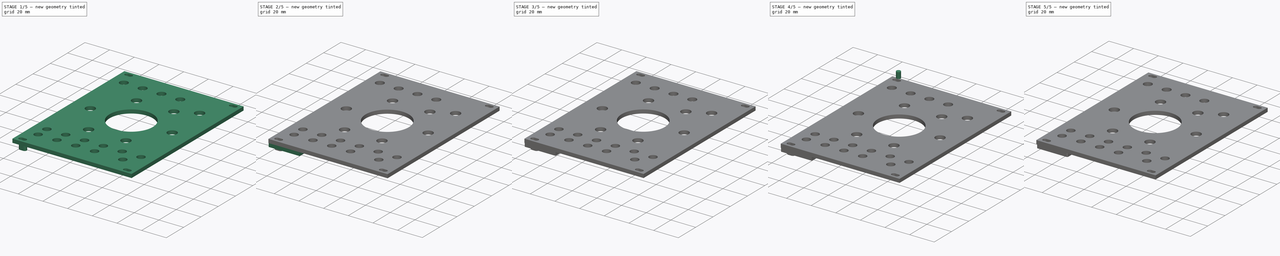
[diagram: build sequence overview — one tinted view per stage of 5, left to right]
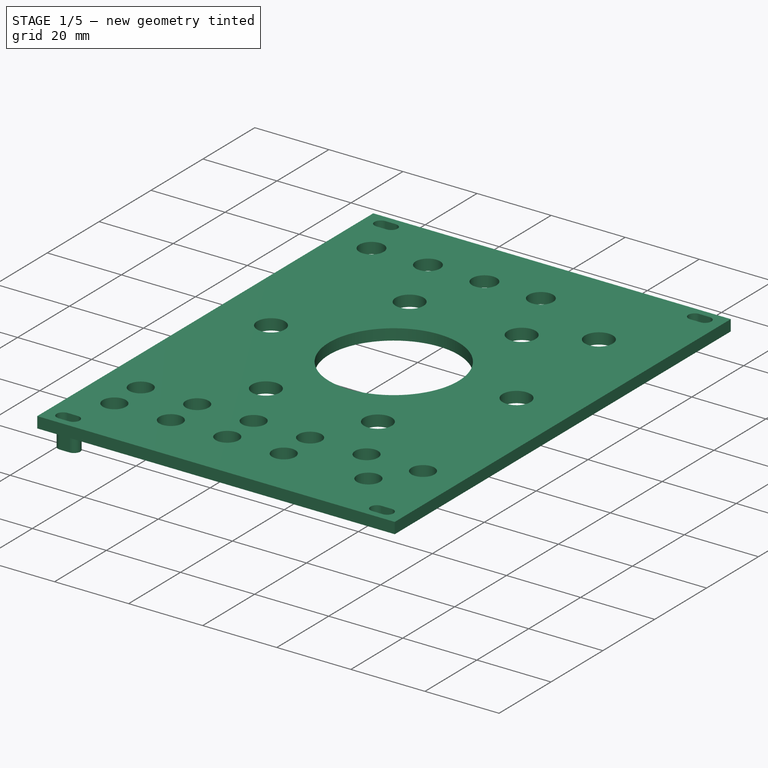
[diagram: stage 1 of 5 — iso view after this stage's code; geometry added in this stage tinted green]
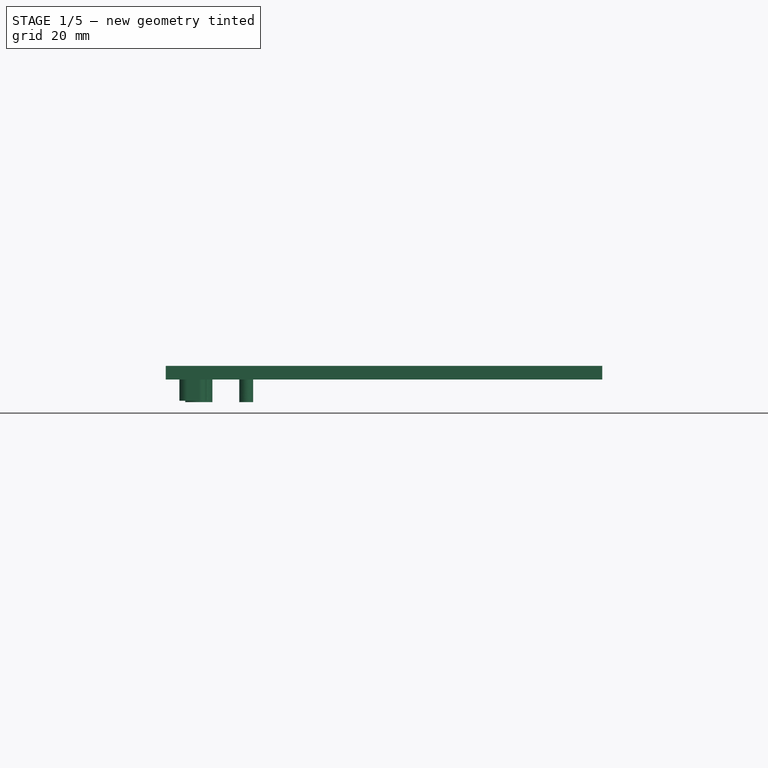
[diagram: stage 1 of 5 — front view after this stage's code; geometry added in this stage tinted green]
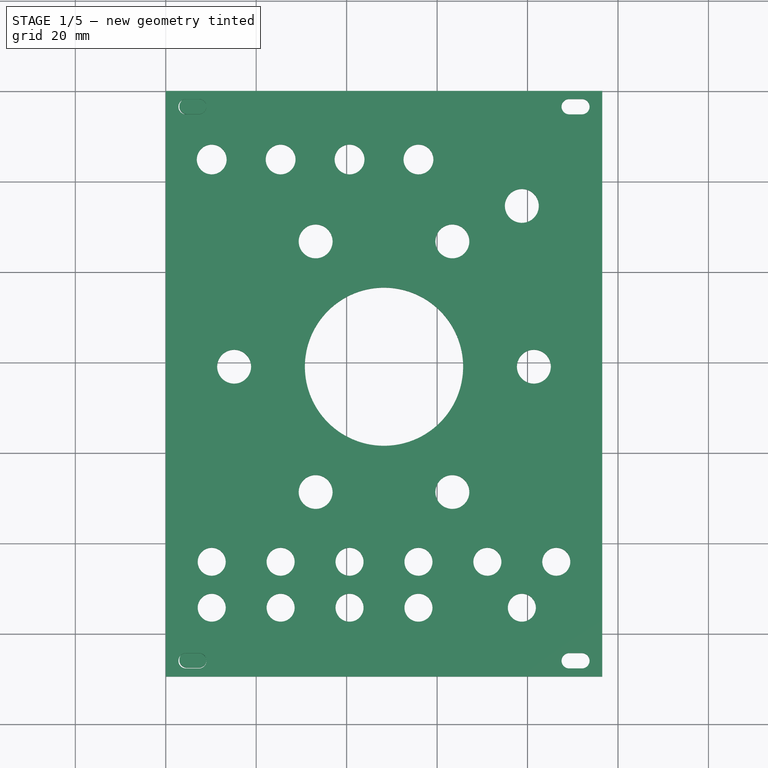
[diagram: stage 1 of 5 — top view after this stage's code; geometry added in this stage tinted green]
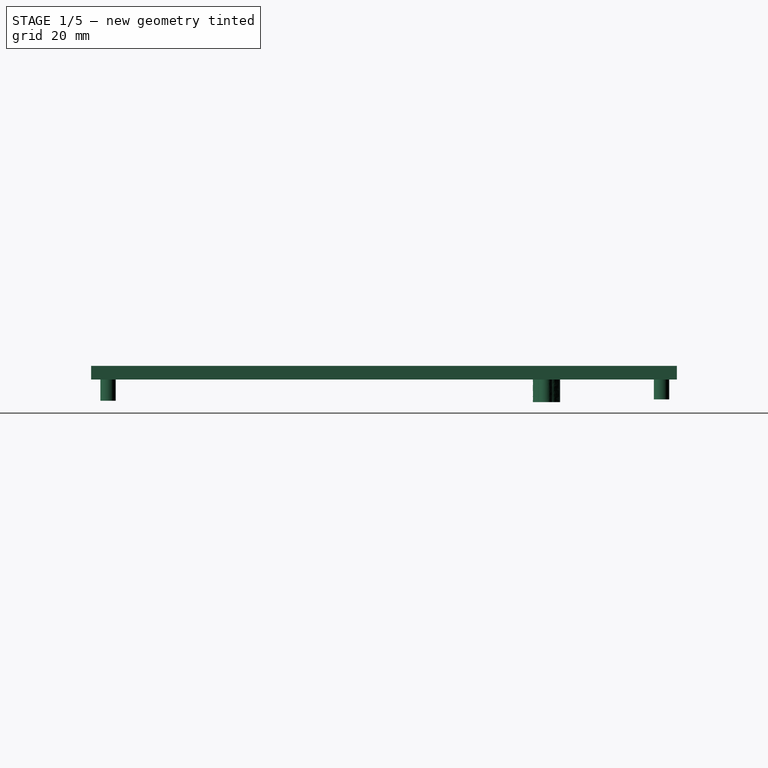
[diagram: stage 1 of 5 — right view after this stage's code; geometry added in this stage tinted green]
FCSTD DOCUMENT  (FreeCAD 0.21R33694 (Git))
Label: ratiometric-strt-2.54
License: All rights reserved
LicenseURL: https://en.wikipedia.org/wiki/All_rights_reserved
objects: Part::Feature×36, Part::Cut×20, Part::Extrusion×17, Part::Cylinder×8, Part::Box×4, Part::MultiFuse×4, Part::Fillet×1, Sketcher::SketchObject×1, App::DocumentObjectGroup×1, PartDesign::Pad×1, PartDesign::Body×1
note: 94 computed .brp shape members not serialized (recipe doc carries the construction recipe); baked Part::Feature solids carry a one-line shape summary decoded from their .brp

FEATURE [Part::Extrusion] Extrude001
  Base = -> path4076_0
  Dir = (0,0,1)
  DirMode = 0
  FaceMakerClass = Part::FaceMakerBullseye
  LengthFwd = -5
  LengthRev = 0
  Solid = true
  Symmetric = false
FEATURE [Part::Extrusion] Extrude002
  Base = -> path4076
  Dir = (0,0,1)
  DirMode = 2
  FaceMakerClass = Part::FaceMakerBullseye
  LengthFwd = -5
  LengthRev = 0
  Solid = true
  Symmetric = false
FEATURE [Part::Cylinder] Cylinder
  Angle = 360
  AttacherType = Attacher::AttachEngine3D
  FirstAngle = 0
  Height = 5
  Placement = pos=(4.7,-3.4,5) rot=(0,0,1;0rad)
  Radius = 1.7
  SecondAngle = 0
FEATURE [Part::Cylinder] Cylinder001
  Angle = 360
  AttacherType = Attacher::AttachEngine3D
  FirstAngle = 0
  Height = 5
  Placement = pos=(7.3,-3.4,5) rot=(0,0,1;0rad)
  Radius = 1.7
  SecondAngle = 0
FEATURE [Part::Box] Box  label="Cube"
  AttacherType = Attacher::AttachEngine3D
  Height = 5
  Length = 2.5
  Placement = pos=(4.7,-5.1,5) rot=(0,0,1;0rad)
  Width = 3.4
FEATURE [Part::MultiFuse] Fusion
  Placement = pos=(0,0,-9.4) rot=(0,0,1;0rad)
  Shapes = -> [Cylinder,Cylinder001,Box]
FEATURE [Part::Box] Box002  label="Cube002"
  AttacherType = Attacher::AttachEngine3D
  Height = 5
  Length = 2.5
  Placement = pos=(4.7,-5.1,5) rot=(0,0,1;0rad)
  Width = 3.4
FEATURE [Part::Cylinder] Cylinder004
  Angle = 360
  AttacherType = Attacher::AttachEngine3D
  FirstAngle = 0
  Height = 5
  Placement = pos=(4.7,-3.4,5) rot=(0,0,1;0rad)
  Radius = 1.7
  SecondAngle = 0
FEATURE [Part::Cylinder] Cylinder005
  Angle = 360
  AttacherType = Attacher::AttachEngine3D
  FirstAngle = 0
  Height = 5
  Placement = pos=(7.3,-3.4,5) rot=(0,0,1;0rad)
  Radius = 1.7
  SecondAngle = 0
FEATURE [Part::MultiFuse] Fusion002
  Placement = pos=(0,-122.4,-9.7) rot=(0,0,1;0rad)
  Shapes = -> [Cylinder004,Cylinder005,Box002]
FEATURE [Sketcher::SketchObject] Sketch
  FullyConstrained = false
  MapMode = 5
  Support = -> [XY_Plane]
  sketch-geometry (63):
    g0: LineSegment StartX=0 StartY=0 StartZ=0 EndX=96.52 EndY=0 EndZ=0
    g1: LineSegment StartX=96.52 StartY=0 StartZ=0 EndX=96.52 EndY=-129.54 EndZ=0
    g2: LineSegment StartX=96.52 StartY=-129.54 StartZ=0 EndX=0 EndY=-129.54 EndZ=0
    g3: LineSegment StartX=0 StartY=-129.54 StartZ=0 EndX=0 EndY=0 EndZ=0
    g4: ArcOfCircle CenterX=4.5 CenterY=-3.5 CenterZ=0 NormalX=0 NormalY=0 NormalZ=1 AngleXU=0 Radius=1.7 StartAngle=1.5708 EndAngle=4.71239
    g5: ArcOfCircle CenterX=7.3 CenterY=-3.5 CenterZ=0 NormalX=0 NormalY=0 NormalZ=1 AngleXU=0 Radius=1.7 StartAngle=4.71239 EndAngle=7.85398
    g6: LineSegment StartX=4.5 StartY=-1.8 StartZ=0 EndX=7.3 EndY=-1.8 EndZ=0
    g7: LineSegment StartX=7.3 StartY=-5.2 StartZ=0 EndX=4.5 EndY=-5.2 EndZ=0
    g8: GeomPoint X=4.5 Y=0 Z=0
    g9: GeomPoint X=0 Y=-3.5 Z=0
    g10: ArcOfCircle CenterX=89.22 CenterY=-3.5 CenterZ=0 NormalX=0 NormalY=0 NormalZ=1 AngleXU=0 Radius=1.7 StartAngle=1.5708 EndAngle=4.71239
    g11: ArcOfCircle CenterX=92.02 CenterY=-3.5 CenterZ=0 NormalX=0 NormalY=0 NormalZ=1 AngleXU=0 Radius=1.7 StartAngle=4.71239 EndAngle=7.85398
    g12: LineSegment StartX=89.22 StartY=-1.8 StartZ=0 EndX=92.02 EndY=-1.8 EndZ=0
    g13: LineSegment StartX=92.02 StartY=-5.2 StartZ=0 EndX=89.22 EndY=-5.2 EndZ=0
    g14: GeomPoint X=96.52 Y=-3.5 Z=0
    g15: ArcOfCircle CenterX=4.5 CenterY=-126.04 CenterZ=0 NormalX=0 NormalY=0 NormalZ=1 AngleXU=0 Radius=1.7 StartAngle=1.5708 EndAngle=4.71239
    g16: ArcOfCircle CenterX=7.3 CenterY=-126.04 CenterZ=0 NormalX=0 NormalY=0 NormalZ=1 AngleXU=0 Radius=1.7 StartAngle=4.71239 EndAngle=7.85398
    g17: LineSegment StartX=4.5 StartY=-124.34 StartZ=0 EndX=7.3 EndY=-124.34 EndZ=0
    g18: LineSegment StartX=7.3 StartY=-127.74 StartZ=0 EndX=4.5 EndY=-127.74 EndZ=0
    g19: ArcOfCircle CenterX=89.22 CenterY=-126.04 CenterZ=0 NormalX=0 NormalY=0 NormalZ=1 AngleXU=0 Radius=1.7 StartAngle=1.5708 EndAngle=4.71239
    g20: ArcOfCircle CenterX=92.02 CenterY=-126.04 CenterZ=0 NormalX=0 NormalY=0 NormalZ=1 AngleXU=0 Radius=1.7 StartAngle=4.71239 EndAngle=7.85398
    g21: LineSegment StartX=89.22 StartY=-124.34 StartZ=0 EndX=92.02 EndY=-124.34 EndZ=0
    g22: LineSegment StartX=92.02 StartY=-127.74 StartZ=0 EndX=89.22 EndY=-127.74 EndZ=0
    g23: GeomPoint X=92.02 Y=-129.54 Z=0
    g24: GeomPoint X=0 Y=-126.04 Z=0
    g25: Circle CenterX=48.26 CenterY=-61 CenterZ=0 NormalX=0 NormalY=0 NormalZ=1 AngleXU=0 Radius=17.5
    g26: Circle CenterX=33.1423 CenterY=-88.7103 CenterZ=0 NormalX=0 NormalY=0 NormalZ=1 AngleXU=0 Radius=3.75
    g27: Circle CenterX=63.3777 CenterY=-33.2897 CenterZ=0 NormalX=0 NormalY=0 NormalZ=1 AngleXU=0 Radius=3.75
    g28: Circle CenterX=63.3777 CenterY=-88.7103 CenterZ=0 NormalX=0 NormalY=0 NormalZ=1 AngleXU=0 Radius=3.75
    g29: Circle CenterX=81.4022 CenterY=-61 CenterZ=0 NormalX=0 NormalY=0 NormalZ=1 AngleXU=0 Radius=3.75
    g30: Circle CenterX=15.1178 CenterY=-61 CenterZ=0 NormalX=0 NormalY=0 NormalZ=1 AngleXU=0 Radius=3.75
    g31: Circle CenterX=33.1423 CenterY=-33.2897 CenterZ=0 NormalX=0 NormalY=0 NormalZ=1 AngleXU=0 Radius=3.75
    g32: GeomPoint X=33.1423 Y=-61 Z=0
    g33: GeomPoint X=48.26 Y=-88.7103 Z=0
    g34: GeomPoint X=48.26 Y=0 Z=0
    g35: Circle CenterX=10.16 CenterY=-104.14 CenterZ=0 NormalX=0 NormalY=0 NormalZ=1 AngleXU=0 Radius=3.1
    g36: Circle CenterX=25.4 CenterY=-104.14 CenterZ=0 NormalX=0 NormalY=0 NormalZ=1 AngleXU=0 Radius=3.1
    g37: Circle CenterX=10.16 CenterY=-114.3 CenterZ=0 NormalX=0 NormalY=0 NormalZ=1 AngleXU=0 Radius=3.1
    g38: Circle CenterX=40.64 CenterY=-104.14 CenterZ=0 NormalX=0 NormalY=0 NormalZ=1 AngleXU=0 Radius=3.1
    g39: Circle CenterX=55.88 CenterY=-104.14 CenterZ=0 NormalX=0 NormalY=0 NormalZ=1 AngleXU=0 Radius=3.1
    g40: Circle CenterX=71.12 CenterY=-104.14 CenterZ=0 NormalX=0 NormalY=0 NormalZ=1 AngleXU=0 Radius=3.1
    g41: LineSegment StartX=10.16 StartY=-104.14 StartZ=0 EndX=25.4 EndY=-104.14 EndZ=0
    g42: LineSegment StartX=40.64 StartY=-104.14 StartZ=0 EndX=25.4 EndY=-104.14 EndZ=0
    g43: LineSegment StartX=40.64 StartY=-104.14 StartZ=0 EndX=55.88 EndY=-104.14 EndZ=0
    g44: LineSegment StartX=55.88 StartY=-104.14 StartZ=0 EndX=71.12 EndY=-104.14 EndZ=0
    g45: Circle CenterX=86.36 CenterY=-104.14 CenterZ=0 NormalX=0 NormalY=0 NormalZ=1 AngleXU=0 Radius=3.1
    g46: LineSegment StartX=71.12 StartY=-104.14 StartZ=0 EndX=86.36 EndY=-104.14 EndZ=0
    g47: Circle CenterX=25.4 CenterY=-114.3 CenterZ=0 NormalX=0 NormalY=0 NormalZ=1 AngleXU=0 Radius=3.1
    g48: Circle CenterX=40.64 CenterY=-114.3 CenterZ=0 NormalX=0 NormalY=0 NormalZ=1 AngleXU=0 Radius=3.1
    g49: LineSegment StartX=10.16 StartY=-114.3 StartZ=0 EndX=25.4 EndY=-114.3 EndZ=0
    g50: LineSegment StartX=25.4 StartY=-114.3 StartZ=0 EndX=40.64 EndY=-114.3 EndZ=0
    g51: Circle CenterX=55.88 CenterY=-114.3 CenterZ=0 NormalX=0 NormalY=0 NormalZ=1 AngleXU=0 Radius=3.1
    g52: LineSegment StartX=40.64 StartY=-114.3 StartZ=0 EndX=55.88 EndY=-114.3 EndZ=0
    g53: Circle CenterX=78.74 CenterY=-114.3 CenterZ=0 NormalX=0 NormalY=0 NormalZ=1 AngleXU=0 Radius=3.1
    g54: Circle CenterX=10.16 CenterY=-15.1713 CenterZ=0 NormalX=0 NormalY=0 NormalZ=1 AngleXU=0 Radius=3.3
    g55: Circle CenterX=25.4 CenterY=-15.1713 CenterZ=0 NormalX=0 NormalY=0 NormalZ=1 AngleXU=0 Radius=3.3
    g56: Circle CenterX=40.64 CenterY=-15.1713 CenterZ=0 NormalX=0 NormalY=0 NormalZ=1 AngleXU=0 Radius=3.3
    g57: Circle CenterX=55.88 CenterY=-15.1713 CenterZ=0 NormalX=0 NormalY=0 NormalZ=1 AngleXU=0 Radius=3.3
    g58: Circle CenterX=78.74 CenterY=-25.4436 CenterZ=0 NormalX=0 NormalY=0 NormalZ=1 AngleXU=0 Radius=3.75
    g59: GeomPoint X=0 Y=-64.77 Z=0
    g60: GeomPoint X=1 Y=-64.77 Z=0
    g61: GeomPoint X=48.26 Y=-104.14 Z=0
    g62: GeomPoint X=78.74 Y=-104.14 Z=0
  constraints (162):
    c: Coincident(g0,g1)
    c: Coincident(g1,g2)
    c: Coincident(g2,g3)
    c: Coincident(g3,g0)
    c: Horizontal(g0)
    c: Horizontal(g2)
    c: Vertical(g1)
    c: Vertical(g3)
    c: Coincident(g0,g-1)
    c: DistanceY(g1,g1) = 129.54
    c: DistanceX(g0,g0) = 96.52
    c: Horizontal(g4,g5)
    c: Horizontal(g4,g5)
    c: DistanceY(g4,g4) = 3.4
    c: DistanceX(g4,g5) = 2.8
    c: Coincident(g6,g4)
    c: Coincident(g6,g5)
    c: Coincident(g7,g5)
    c: Coincident(g7,g4)
    c: Vertical(g4,g4)
    c: Vertical(g4,g4)
    c: Vertical(g5,g5)
    c: Vertical(g5,g5)
    c: PointOnObject(g8,g0)
    c: Vertical(g8,g4)
    c: DistanceY(g4,g8) = 1.8
    c: PointOnObject(g9,g3)
    c: Horizontal(g9,g4)
    c: DistanceX(g9,g4) = 4.5
    c: Horizontal(g10,g11)
    c: Horizontal(g10,g11)
    c: Equal(g4,g10) = 3.4
    c: DistanceX(g10,g11) = 2.8
    c: Coincident(g12,g10)
    c: Coincident(g12,g11)
    c: Coincident(g13,g11)
    c: Coincident(g13,g10)
    c: Vertical(g10,g10)
    c: Vertical(g10,g10)
    c: Vertical(g11,g11)
    c: Vertical(g11,g11)
    c: Horizontal(g10,g5)
    c: PointOnObject(g14,g1)
    c: Horizontal(g14,g11)
    c: DistanceX(g11,g14) = 4.5
    c: Horizontal(g15,g16)
    c: Horizontal(g15,g16)
    c: Equal(g4,g15) = 3.4
    c: DistanceX(g15,g16) = 2.8
    c: Coincident(g17,g15)
    c: Coincident(g17,g16)
    c: Coincident(g18,g16)
    c: Coincident(g18,g15)
    c: Vertical(g15,g15)
    c: Vertical(g15,g15)
    c: Vertical(g16,g16)
    c: Vertical(g16,g16)
    c: Horizontal(g19,g20)
    c: Horizontal(g19,g20)
    c: Equal(g15,g19) = 3.4
    c: DistanceX(g19,g20) = 2.8
    c: Coincident(g21,g19)
    c: Coincident(g21,g20)
    c: Coincident(g22,g20)
    c: Coincident(g22,g19)
    c: Vertical(g19,g19)
    c: Vertical(g19,g19)
    c: Vertical(g20,g20)
    c: Vertical(g20,g20)
    c: Horizontal(g19,g16)
    c: Vertical(g11,g20)
    c: PointOnObject(g23,g2)
    c: Vertical(g23,g20)
    c: DistanceY(g23,g20) = 1.8
    c: PointOnObject(g24,g3)
    c: Horizontal(g24,g15)
    c: DistanceX(g24,g15) = 4.5
    c: Radius(g25) = 17.5
    c: Radius(g26) = 3.75
    c: Equal(g28,g26)
    c: Equal(g30,g26)
    c: Equal(g27,g26)
    c: Equal(g31,g26)
    c: Equal(g29,g26)
    c: Vertical(g26,g31)
    c: Horizontal(g30,g29)
    c: Horizontal(g26,g28)
    c: Horizontal(g27,g31)
    c: Symmetric(g26,g31,g32)
    c: Horizontal(g30,g32)
    c: Symmetric(g28,g26,g33)
    c: Vertical(g25,g33)
    c: Vertical(g28,g27)
    c: Symmetric(g29,g30,g25)
    c: DistanceY(g25,g0) = 61
    c: Symmetric(g0,g0,g34)
    c: Vertical(g25,g34)
    c: Radius(g35) = 3.1
    c: Equal(g35,g36) = 3.1
    c: Equal(g35,g37) = 3.1
    c: Equal(g35,g38) = 3.1
    c: Equal(g35,g39) = 3.1
    c: Equal(g35,g40) = 3.1
    c: Equal(g35,g45) = 3.1
    c: Coincident(g41,g35)
    c: Coincident(g41,g36)
    c: Coincident(g42,g36)
    c: Coincident(g42,g38)
    c: Coincident(g43,g38)
    c: Coincident(g43,g39)
    c: Coincident(g44,g39)
    c: Coincident(g44,g40)
    c: Equal(g41,g42)
    c: Equal(g43,g42)
    c: Equal(g44,g43)
    c: Coincident(g46,g40)
    c: Coincident(g46,g45)
    c: Equal(g46,g44)
    c: Horizontal(g35,g45)
    c: DistanceX(g43,g43) = 15.24
    c: Coincident(g49,g37)
    c: Coincident(g49,g47)
    c: Coincident(g50,g47)
    c: Coincident(g50,g48)
    c: Equal(g50,g49)
    c: Horizontal(g52)
    c: Coincident(g52,g48)
    c: Coincident(g52,g51)
    c: Equal(g52,g50)
    c: Equal(g47,g37)
    c: Equal(g48,g37)
    c: Equal(g51,g37)
    c: Equal(g53,g37)
    c: Horizontal(g53,g37)
    c: Horizontal(g47,g48)
    c: Horizontal(g37,g47)
    c: Equal(g57,g56)
    c: Equal(g56,g55)
    c: Equal(g55,g54)
    c: Radius(g54) = 3.3
    c: Vertical(g54,g37)
    c: Vertical(g55,g47)
    c: Vertical(g56,g48)
    c: Vertical(g57,g51)
    c: Vertical(g58,g53)
    c: Equal(g58,g27)
    c: Horizontal(g56,g57)
    c: Symmetric(g2,g0,g59)
    c: Horizontal(g60,g59)
    c: Horizontal(g41)
    c: Horizontal(g42)
    c: Horizontal(g43)
    c: Horizontal(g44)
    c: Symmetric(g38,g39,g61)
    c: Vertical(g61,g25)
    c: Horizontal(g54,g55)
    c: Horizontal(g56,g55)
    c: Vertical(g35,g37)
    c: Symmetric(g40,g45,g62)
    c: Vertical(g53,g62)
    c: Equal(g49,g41)
    c: DistanceY(g37,g35) = 10.16
FEATURE [App::DocumentObjectGroup] Group
  Group = -> [path4077_9_010,path22_0,rect207,path4077,path4078,path4079,path4080,path4077_9,path4077_010,path4077_011,path4077_012,path21_006,path4077_5,path4077_013,path4077_014,path4077_015,path4077_9_7,path4077_9_008,path4077_9_009,Fillet]
FEATURE [PartDesign::Pad] Pad
  Direction = (0,0,1)
  Length = 3
  Length2 = 10
  Profile = -> Sketch
  ReferenceAxis = -> Sketch [N_Axis]
  Type = 0
FEATURE [PartDesign::Body] Body
  Group = -> [Sketch,Pad]
  Origin = -> Origin
  Tip = -> Pad
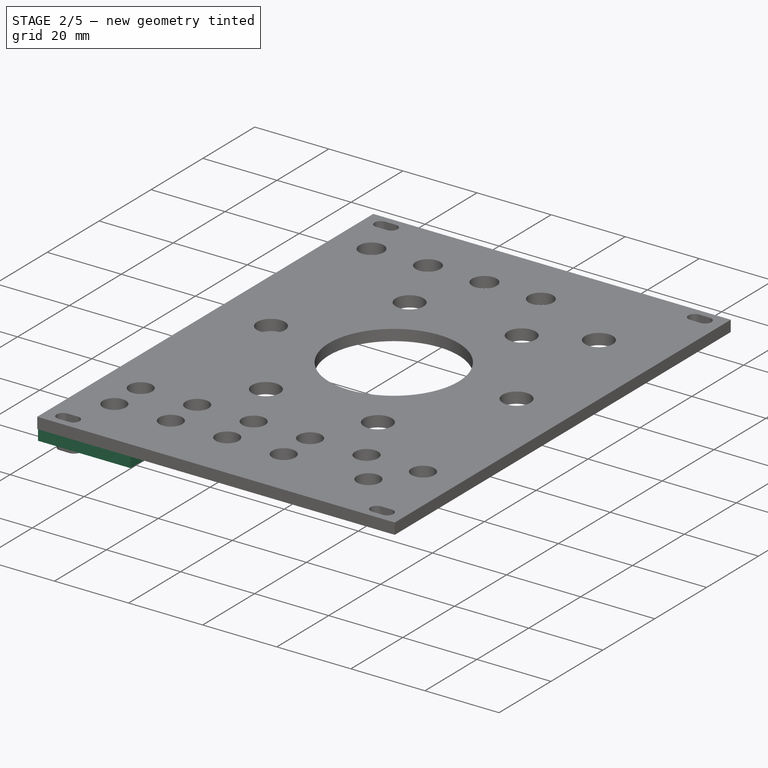
[diagram: stage 2 of 5 — iso view after this stage's code; geometry added in this stage tinted green]
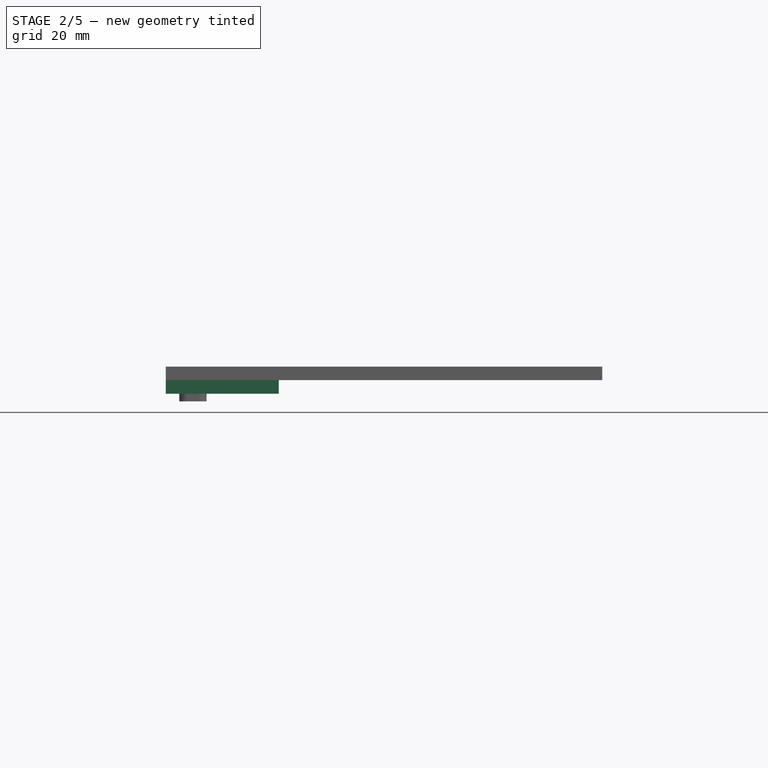
[diagram: stage 2 of 5 — front view after this stage's code; geometry added in this stage tinted green]
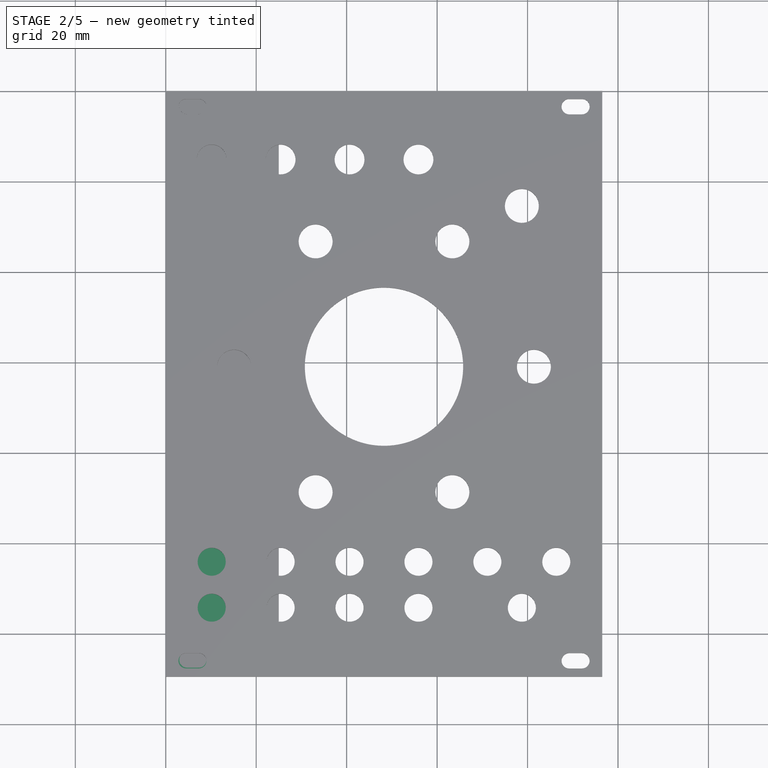
[diagram: stage 2 of 5 — top view after this stage's code; geometry added in this stage tinted green]
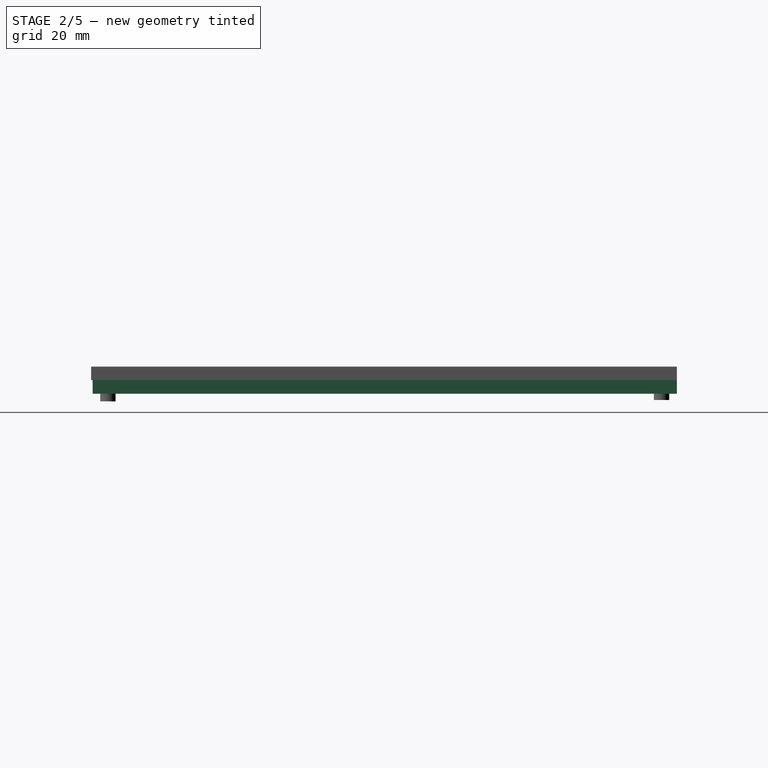
[diagram: stage 2 of 5 — right view after this stage's code; geometry added in this stage tinted green]
FEATURE [Part::Feature] path22_0
  shape: bbox 3565 x 495.7 x 2e-07 mm, 0 faces, 0 solids (baked)
FEATURE [Part::Feature] rect207
  shape: bbox 23.4 x 110 x 2e-07 mm, 0 faces, 0 solids (baked)
FEATURE [Part::Feature] path4076
  Placement = pos=(17.0033,-19.4882,0) rot=(0,0,1;0rad)
  shape: bbox 3.367 x 3.682 x 2e-07 mm, 0 faces, 0 solids (baked)
FEATURE [Part::Feature] path4076_0
  Placement = pos=(6.52305,-19.2748,0) rot=(0,0,1;0rad)
  shape: bbox 6.626 x 7.246 x 2e-07 mm, 0 faces, 0 solids (baked)
FEATURE [Part::Feature] path4076_3
  Placement = pos=(17.0033,-19.4882,0) rot=(0,0,1;0rad)
  shape: bbox 3.367 x 3.682 x 2e-07 mm, 0 faces, 0 solids (baked)
FEATURE [Part::Feature] path4076_0_7
  Placement = pos=(6.52305,-19.2748,0) rot=(0,0,1;0rad)
  shape: bbox 6.626 x 7.246 x 2e-07 mm, 0 faces, 0 solids (baked)
FEATURE [Part::Feature] path4076_5
  Placement = pos=(17.0033,-19.4882,0) rot=(0,0,1;0rad)
  shape: bbox 3.367 x 3.682 x 2e-07 mm, 0 faces, 0 solids (baked)
FEATURE [Part::Feature] path4076_0_6
  Placement = pos=(6.52305,-19.2748,0) rot=(0,0,1;0rad)
  shape: bbox 6.626 x 7.246 x 2e-07 mm, 0 faces, 0 solids (baked)
FEATURE [Part::Feature] path4076_3_4
  Placement = pos=(17.0033,-19.4882,0) rot=(0,0,1;0rad)
  shape: bbox 3.367 x 3.682 x 2e-07 mm, 0 faces, 0 solids (baked)
FEATURE [Part::Feature] path4076_0_7_0
  Placement = pos=(6.52305,-19.2748,0) rot=(0,0,1;0rad)
  shape: bbox 6.626 x 7.246 x 2e-07 mm, 0 faces, 0 solids (baked)
FEATURE [Part::Feature] path4076_4
  Placement = pos=(17.0033,-19.4882,0) rot=(0,0,1;0rad)
  shape: bbox 3.367 x 3.682 x 2e-07 mm, 0 faces, 0 solids (baked)
FEATURE [Part::Feature] path4076_0_0
  Placement = pos=(6.52305,-19.2748,0) rot=(0,0,1;0rad)
  shape: bbox 6.626 x 7.246 x 2e-07 mm, 0 faces, 0 solids (baked)
FEATURE [Part::Feature] path4076_3_6
  Placement = pos=(17.0033,-19.4882,0) rot=(0,0,1;0rad)
  shape: bbox 3.367 x 3.682 x 2e-07 mm, 0 faces, 0 solids (baked)
FEATURE [Part::Feature] path4076_0_7_8
  Placement = pos=(6.52305,-19.2748,0) rot=(0,0,1;0rad)
  shape: bbox 6.626 x 7.246 x 2e-07 mm, 0 faces, 0 solids (baked)
FEATURE [Part::Feature] path4076_6
  Placement = pos=(17.0033,-19.4882,0) rot=(0,0,1;0rad)
  shape: bbox 3.367 x 3.682 x 2e-07 mm, 0 faces, 0 solids (baked)
FEATURE [Part::Feature] path4076_0_8
  Placement = pos=(6.52305,-19.2748,0) rot=(0,0,1;0rad)
  shape: bbox 6.626 x 7.246 x 2e-07 mm, 0 faces, 0 solids (baked)
FEATURE [Part::Feature] path4076_3_7
  Placement = pos=(17.0033,-19.4882,0) rot=(0,0,1;0rad)
  shape: bbox 3.367 x 3.682 x 2e-07 mm, 0 faces, 0 solids (baked)
FEATURE [Part::Feature] path4076_0_7_1
  Placement = pos=(6.52305,-19.2748,0) rot=(0,0,1;0rad)
  shape: bbox 6.626 x 7.246 x 2e-07 mm, 0 faces, 0 solids (baked)
FEATURE [Part::Feature] path4077
  shape: bbox 2.649 x 0.008 x 2e-07 mm, 0 faces, 0 solids (baked)
FEATURE [Part::Feature] path4078
  shape: bbox 2.773 x 0.009 x 2e-07 mm, 0 faces, 0 solids (baked)
FEATURE [Part::Feature] path4079
  shape: bbox 1.727 x 3.267 x 2e-07 mm, 0 faces, 0 solids (baked)
FEATURE [Part::Feature] path4080
  shape: bbox 1.775 x 3.284 x 2e-07 mm, 0 faces, 0 solids (baked)
FEATURE [Part::Feature] path4077_9
  shape: bbox 2.649 x 0.008 x 2e-07 mm, 0 faces, 0 solids (baked)
FEATURE [Part::Feature] path4077_010
  shape: bbox 2.773 x 0.009 x 2e-07 mm, 0 faces, 0 solids (baked)
FEATURE [Part::Feature] path4077_011
  shape: bbox 1.727 x 3.267 x 2e-07 mm, 0 faces, 0 solids (baked)
FEATURE [Part::Feature] path4077_012
  shape: bbox 1.775 x 3.284 x 2e-07 mm, 0 faces, 0 solids (baked)
FEATURE [Part::Feature] path21_5
  shape: bbox 25 x 129.2 x 2e-07 mm, 1 faces, 0 solids (baked)
FEATURE [Part::Feature] path21_006
  shape: bbox 24.43 x 128.5 x 2e-07 mm, 1 faces, 0 solids (baked)
FEATURE [Part::Feature] path4077_5
  shape: bbox 2.649 x 0.008 x 2e-07 mm, 0 faces, 0 solids (baked)
FEATURE [Part::Feature] path4077_013
  shape: bbox 2.773 x 0.009 x 2e-07 mm, 0 faces, 0 solids (baked)
FEATURE [Part::Feature] path4077_014
  shape: bbox 1.727 x 3.267 x 2e-07 mm, 0 faces, 0 solids (baked)
FEATURE [Part::Feature] path4077_015
  shape: bbox 1.775 x 3.284 x 2e-07 mm, 0 faces, 0 solids (baked)
FEATURE [Part::Feature] path4077_9_7
  shape: bbox 2.649 x 0.008 x 2e-07 mm, 0 faces, 0 solids (baked)
FEATURE [Part::Feature] path4077_9_008
  shape: bbox 2.773 x 0.009 x 2e-07 mm, 0 faces, 0 solids (baked)
FEATURE [Part::Feature] path4077_9_009
  shape: bbox 1.727 x 3.267 x 2e-07 mm, 0 faces, 0 solids (baked)
FEATURE [Part::Feature] path4077_9_010
  shape: bbox 1.775 x 3.284 x 2e-07 mm, 0 faces, 0 solids (baked)
FEATURE [Part::Extrusion] Extrude
  Base = -> path21_5
  Dir = (0,0,-3)
  DirMode = 0
  FaceMakerClass = Part::FaceMakerBullseye
  LengthFwd = 3
  LengthRev = 0
  Solid = false
  Symmetric = false
FEATURE [Part::Cut] Cut
  Base = -> Extrude
  Tool = -> Extrude001
FEATURE [Part::Extrusion] Extrude003
  Base = -> path4076_3
  Dir = (0,0,1)
  DirMode = 2
  FaceMakerClass = Part::FaceMakerBullseye
  LengthFwd = -5
  LengthRev = 0
  Solid = true
  Symmetric = false
FEATURE [Part::Extrusion] Extrude004
  Base = -> path4076_0_7
  Dir = (0,0,1)
  DirMode = 2
  FaceMakerClass = Part::FaceMakerBullseye
  LengthFwd = -5
  LengthRev = 0
  Solid = true
  Symmetric = false
FEATURE [Part::Extrusion] Extrude005
  Base = -> path4076_5
  Dir = (0,0,1)
  DirMode = 2
  FaceMakerClass = Part::FaceMakerBullseye
  LengthFwd = -5
  LengthRev = 0
  Solid = true
  Symmetric = false
FEATURE [Part::Extrusion] Extrude006
  Base = -> path4076_0_6
  Dir = (0,0,1)
  DirMode = 2
  FaceMakerClass = Part::FaceMakerBullseye
  LengthFwd = -5
  LengthRev = 0
  Solid = true
  Symmetric = false
FEATURE [Part::Cut] Cut001
  Base = -> Cut
  Tool = -> Extrude002
FEATURE [Part::Cut] Cut002
  Base = -> Cut001
  Tool = -> Extrude003
FEATURE [Part::Cut] Cut003
  Base = -> Cut002
  Tool = -> Extrude004
FEATURE [Part::Cut] Cut004
  Base = -> Cut003
  Tool = -> Extrude005
FEATURE [Part::Cut] Cut005
  Base = -> Cut004
  Tool = -> Extrude006
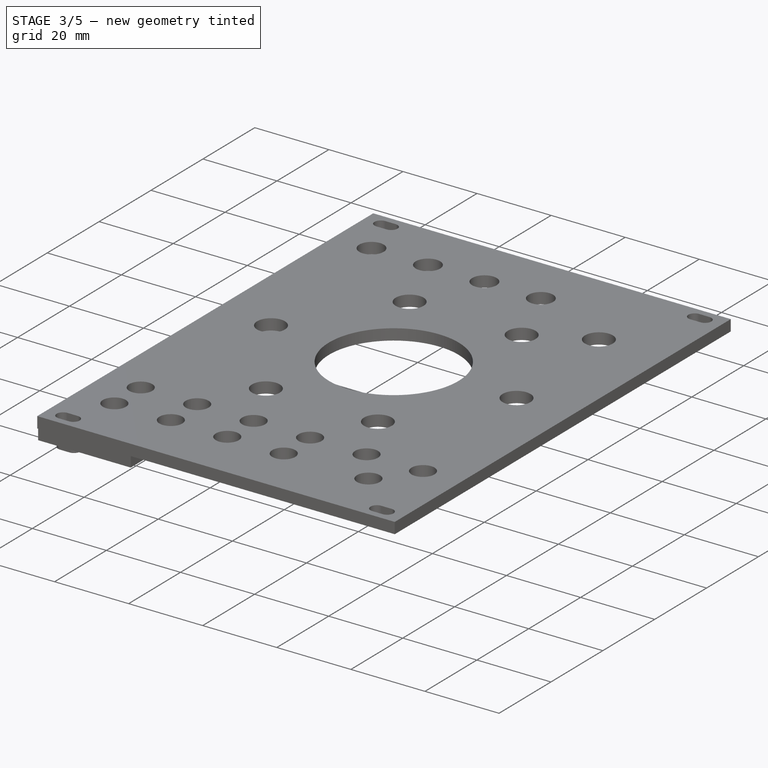
[diagram: stage 3 of 5 — iso view after this stage's code; geometry added in this stage tinted green]
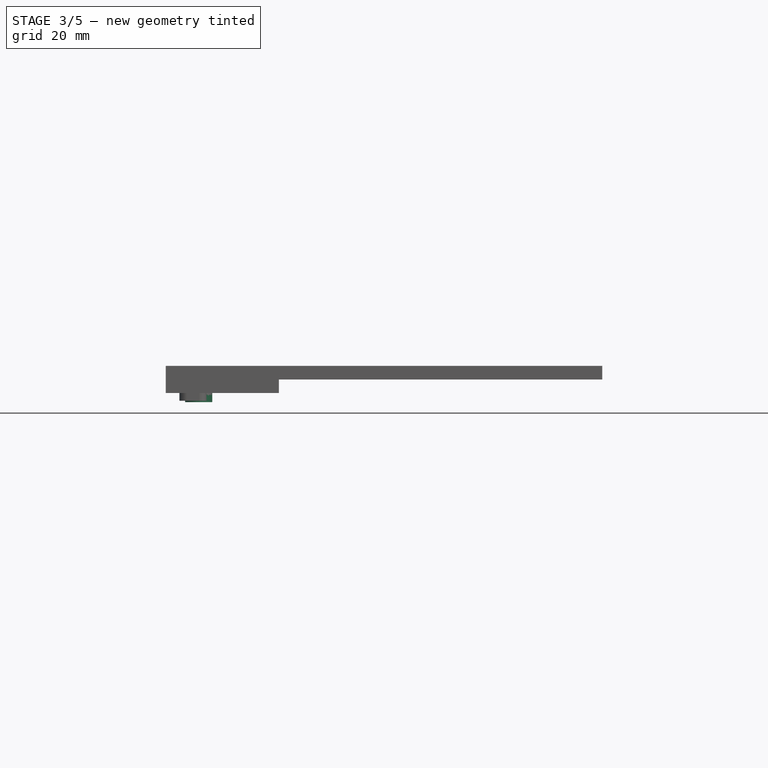
[diagram: stage 3 of 5 — front view after this stage's code; geometry added in this stage tinted green]
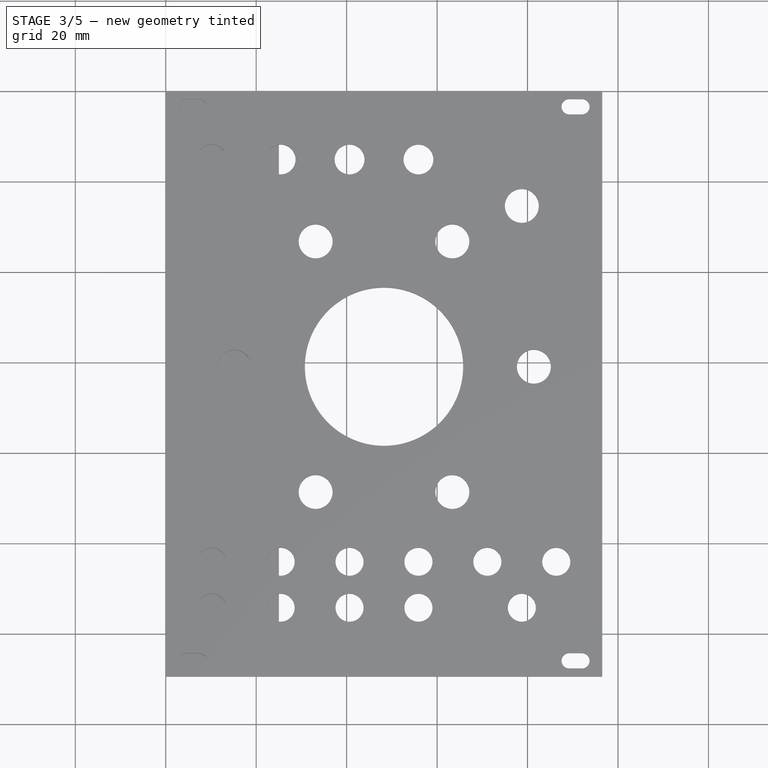
[diagram: stage 3 of 5 — top view after this stage's code; geometry added in this stage tinted green]
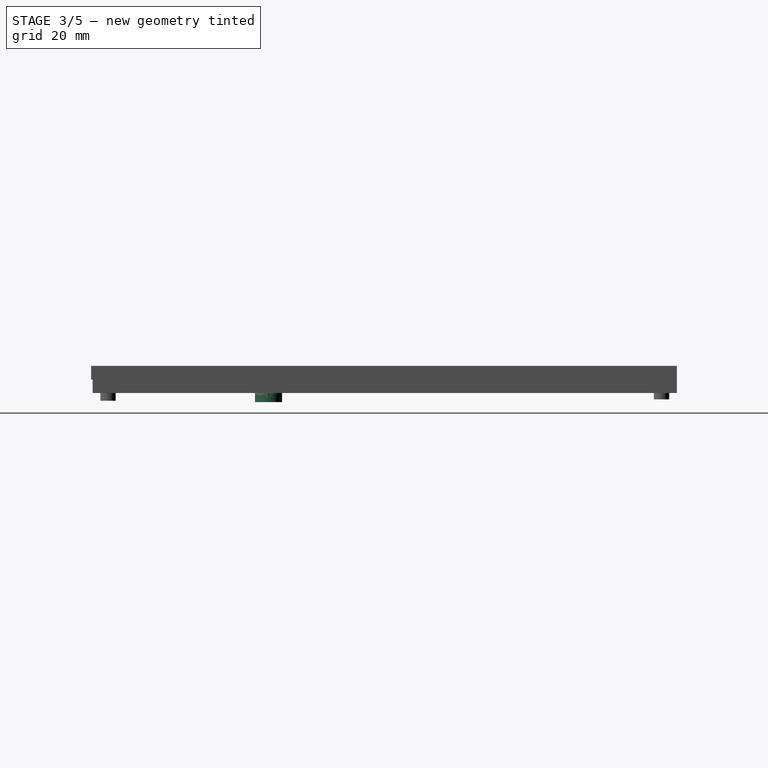
[diagram: stage 3 of 5 — right view after this stage's code; geometry added in this stage tinted green]
FEATURE [Part::Extrusion] Extrude007
  Base = -> path4076_3_4
  Dir = (0,0,1)
  DirMode = 2
  FaceMakerClass = Part::FaceMakerBullseye
  LengthFwd = -5
  LengthRev = 0
  Solid = true
  Symmetric = false
FEATURE [Part::Extrusion] Extrude008
  Base = -> path4076_0_7_0
  Dir = (0,0,1)
  DirMode = 2
  FaceMakerClass = Part::FaceMakerBullseye
  LengthFwd = -5
  LengthRev = 0
  Solid = true
  Symmetric = false
FEATURE [Part::Extrusion] Extrude009
  Base = -> path4076_4
  Dir = (0,0,1)
  DirMode = 2
  FaceMakerClass = Part::FaceMakerBullseye
  LengthFwd = -5
  LengthRev = 0
  Solid = true
  Symmetric = false
FEATURE [Part::Extrusion] Extrude010
  Base = -> path4076_0_0
  Dir = (0,0,1)
  DirMode = 2
  FaceMakerClass = Part::FaceMakerBullseye
  LengthFwd = -5
  LengthRev = 0
  Solid = true
  Symmetric = false
FEATURE [Part::Extrusion] Extrude011
  Base = -> path4076_3_6
  Dir = (0,0,1)
  DirMode = 2
  FaceMakerClass = Part::FaceMakerBullseye
  LengthFwd = -5
  LengthRev = 0
  Solid = true
  Symmetric = false
FEATURE [Part::Extrusion] Extrude012
  Base = -> path4076_0_7_8
  Dir = (0,0,1)
  DirMode = 2
  FaceMakerClass = Part::FaceMakerBullseye
  LengthFwd = -5
  LengthRev = 0
  Solid = true
  Symmetric = false
FEATURE [Part::Cut] Cut006
  Base = -> Cut005
  Tool = -> Extrude007
FEATURE [Part::Cut] Cut007
  Base = -> Cut006
  Tool = -> Extrude008
FEATURE [Part::Cut] Cut008
  Base = -> Cut007
  Tool = -> Extrude009
FEATURE [Part::Cut] Cut009
  Base = -> Cut008
  Tool = -> Extrude010
FEATURE [Part::Cut] Cut010
  Base = -> Cut009
  Tool = -> Extrude011
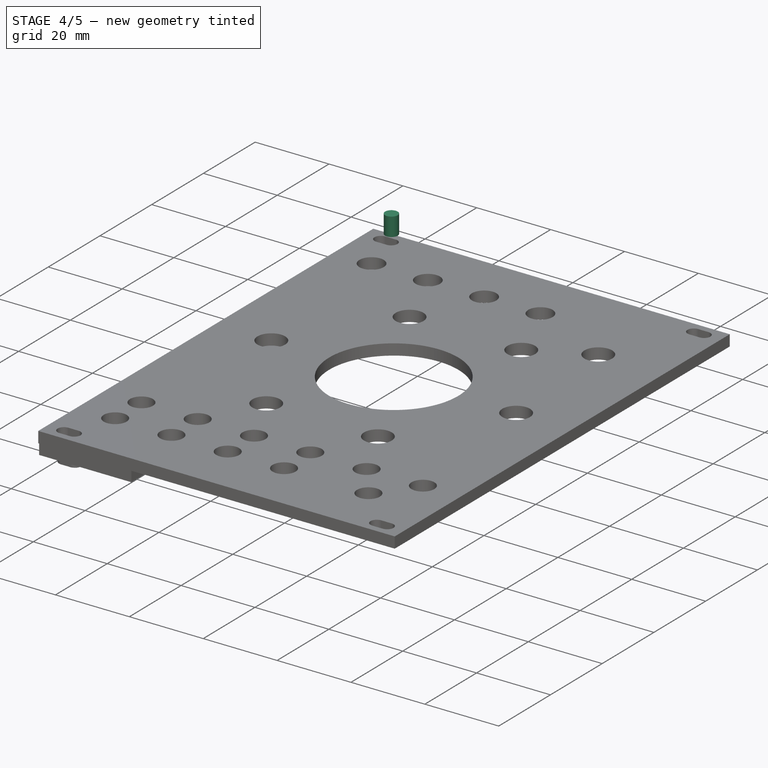
[diagram: stage 4 of 5 — iso view after this stage's code; geometry added in this stage tinted green]
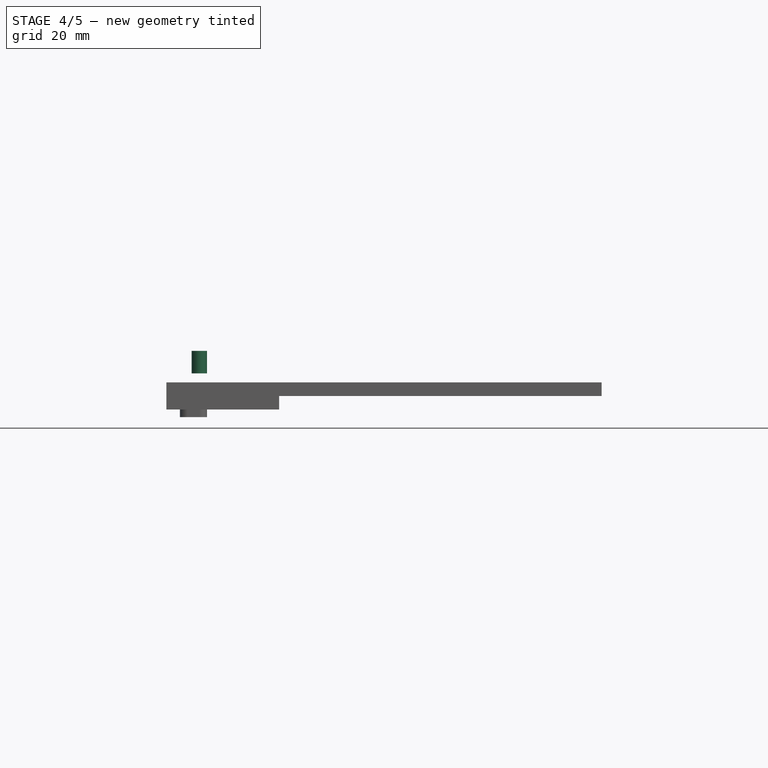
[diagram: stage 4 of 5 — front view after this stage's code; geometry added in this stage tinted green]
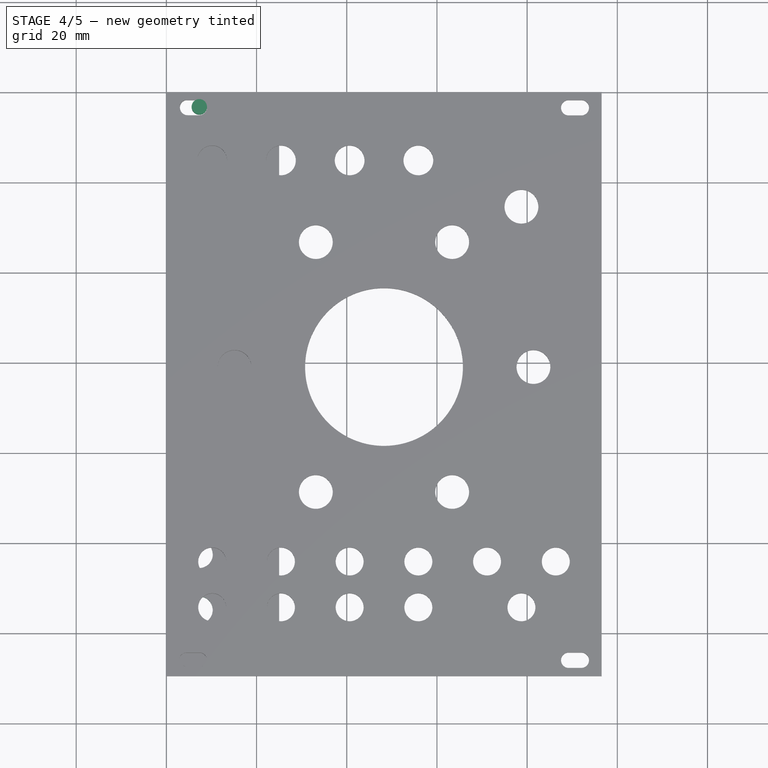
[diagram: stage 4 of 5 — top view after this stage's code; geometry added in this stage tinted green]
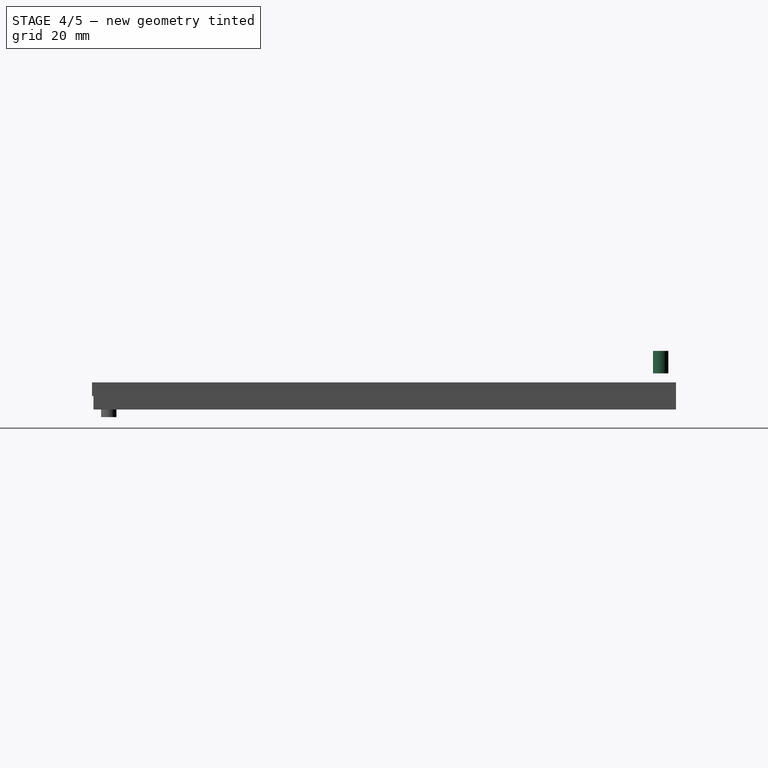
[diagram: stage 4 of 5 — right view after this stage's code; geometry added in this stage tinted green]
FEATURE [Part::Extrusion] Extrude013
  Base = -> path4076_6
  Dir = (0,0,1)
  DirMode = 2
  FaceMakerClass = Part::FaceMakerBullseye
  LengthFwd = -5
  LengthRev = 0
  Solid = true
  Symmetric = false
FEATURE [Part::Extrusion] Extrude014
  Base = -> path4076_0_8
  Dir = (0,0,1)
  DirMode = 2
  FaceMakerClass = Part::FaceMakerBullseye
  LengthFwd = -5
  LengthRev = 0
  Solid = true
  Symmetric = false
FEATURE [Part::Extrusion] Extrude015
  Base = -> path4076_3_7
  Dir = (0,0,1)
  DirMode = 2
  FaceMakerClass = Part::FaceMakerBullseye
  LengthFwd = -5
  LengthRev = 0
  Solid = true
  Symmetric = false
FEATURE [Part::Extrusion] Extrude016
  Base = -> path4076_0_7_1
  Dir = (0,0,1)
  DirMode = 2
  FaceMakerClass = Part::FaceMakerBullseye
  LengthFwd = -5
  LengthRev = 0
  Solid = true
  Symmetric = false
FEATURE [Part::Cut] Cut011
  Base = -> Cut010
  Tool = -> Extrude012
FEATURE [Part::Cut] Cut012
  Base = -> Cut011
  Tool = -> Extrude013
FEATURE [Part::Cut] Cut013
  Base = -> Cut012
  Tool = -> Extrude014
FEATURE [Part::Cut] Cut014
  Base = -> Cut013
  Tool = -> Extrude015
FEATURE [Part::Cut] Cut015
  Base = -> Cut014
  Tool = -> Extrude016
FEATURE [Part::Cylinder] Cylinder003
  Angle = 360
  AttacherType = Attacher::AttachEngine3D
  FirstAngle = 0
  Height = 5
  Placement = pos=(7.3,-3.4,5) rot=(0,0,1;0rad)
  Radius = 1.7
  SecondAngle = 0
FEATURE [Part::Cut] Cut016
  Base = -> Cut015
  Tool = -> Fusion
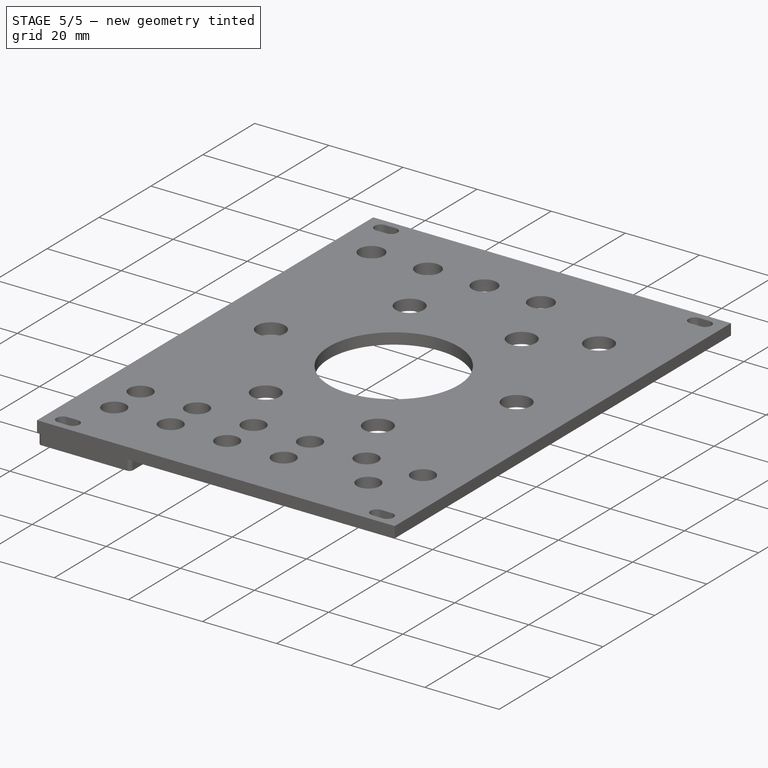
[diagram: stage 5 of 5 — iso view after this stage's code; geometry added in this stage tinted green]
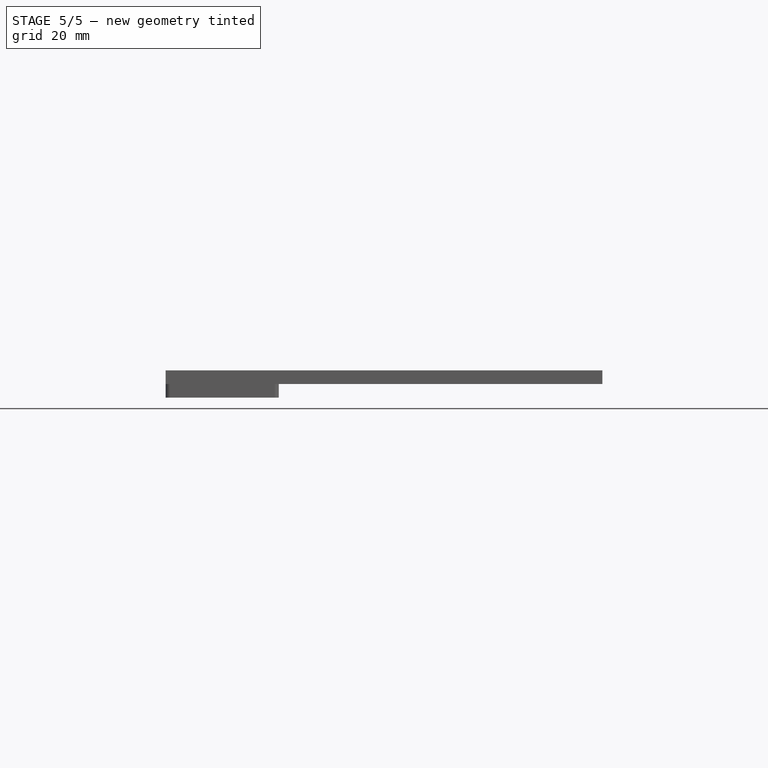
[diagram: stage 5 of 5 — front view after this stage's code; geometry added in this stage tinted green]
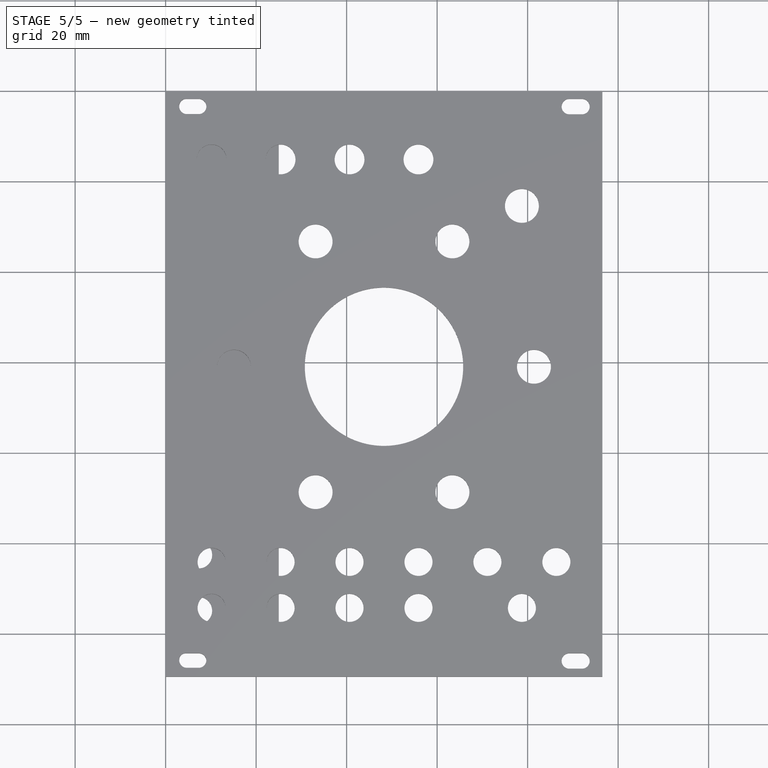
[diagram: stage 5 of 5 — top view after this stage's code; geometry added in this stage tinted green]
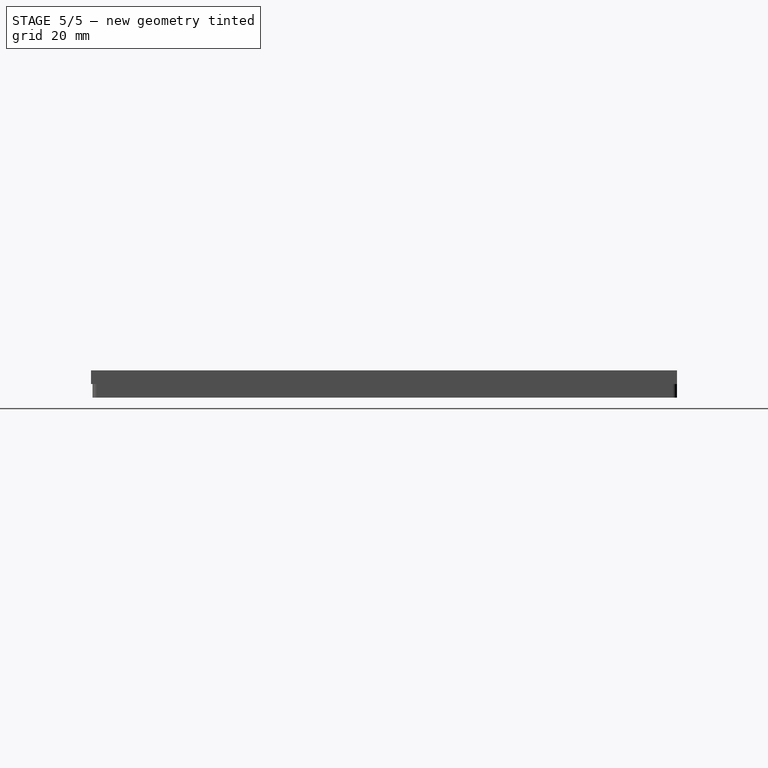
[diagram: stage 5 of 5 — right view after this stage's code; geometry added in this stage tinted green]
FEATURE [Part::Box] Box001  label="Cube001"
  AttacherType = Attacher::AttachEngine3D
  Height = 5
  Length = 2.5
  Placement = pos=(4.7,-5.1,5) rot=(0,0,1;0rad)
  Width = 3.4
FEATURE [Part::Cylinder] Cylinder002
  Angle = 360
  AttacherType = Attacher::AttachEngine3D
  FirstAngle = 0
  Height = 5
  Placement = pos=(4.7,-3.4,5) rot=(0,0,1;0rad)
  Radius = 1.7
  SecondAngle = 0
FEATURE [Part::MultiFuse] Fusion001
  Placement = pos=(12.5,0,-9.6) rot=(0,0,1;0rad)
  Shapes = -> [Cylinder002,Cylinder003,Box001]
FEATURE [Part::Cut] Cut017
  Base = -> Cut016
  Tool = -> Fusion001
FEATURE [Part::Box] Box003  label="Cube003"
  AttacherType = Attacher::AttachEngine3D
  Height = 5
  Length = 2.5
  Placement = pos=(4.7,-5.1,5) rot=(0,0,1;0rad)
  Width = 3.4
FEATURE [Part::Cylinder] Cylinder006
  Angle = 360
  AttacherType = Attacher::AttachEngine3D
  FirstAngle = 0
  Height = 5
  Placement = pos=(4.7,-3.4,5) rot=(0,0,1;0rad)
  Radius = 1.7
  SecondAngle = 0
FEATURE [Part::Cylinder] Cylinder007
  Angle = 360
  AttacherType = Attacher::AttachEngine3D
  FirstAngle = 0
  Height = 5
  Placement = pos=(7.3,-3.4,5) rot=(0,0,1;0rad)
  Radius = 1.7
  SecondAngle = 0
FEATURE [Part::MultiFuse] Fusion003
  Placement = pos=(12.5,-122.5,-9.5) rot=(0,0,1;0rad)
  Shapes = -> [Cylinder006,Cylinder007,Box003]
FEATURE [Part::Cut] Cut018
  Base = -> Cut017
  Tool = -> Fusion002
FEATURE [Part::Cut] Cut019
  Base = -> Cut018
  Tool = -> Fusion003
FEATURE [Part::Fillet] Fillet
  Base = -> Cut019
  Edges = 4 edges r=1: [Edge1,Edge126,Edge127,Edge132]
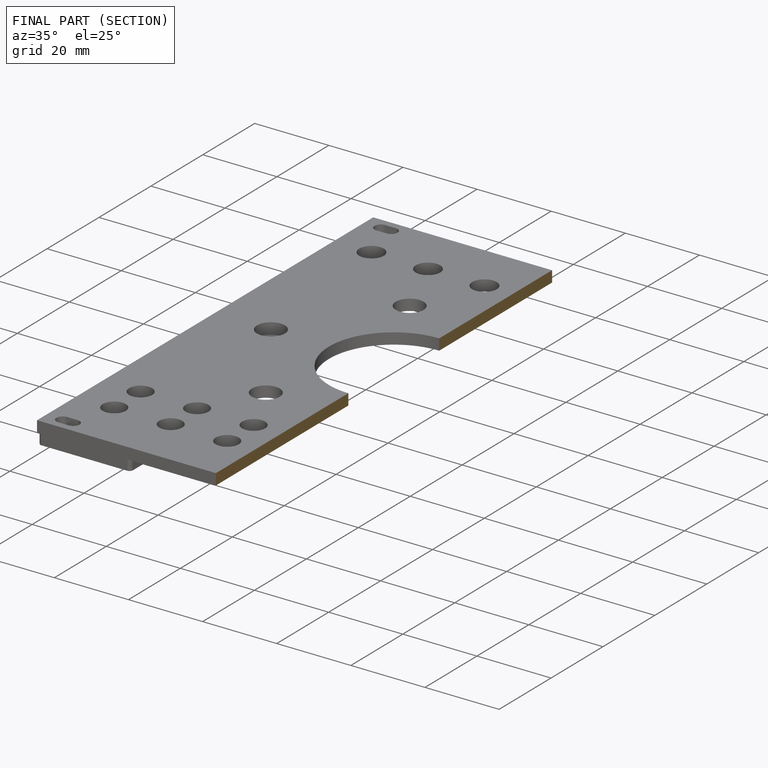
[diagram: finished part — half-section view (interior)]
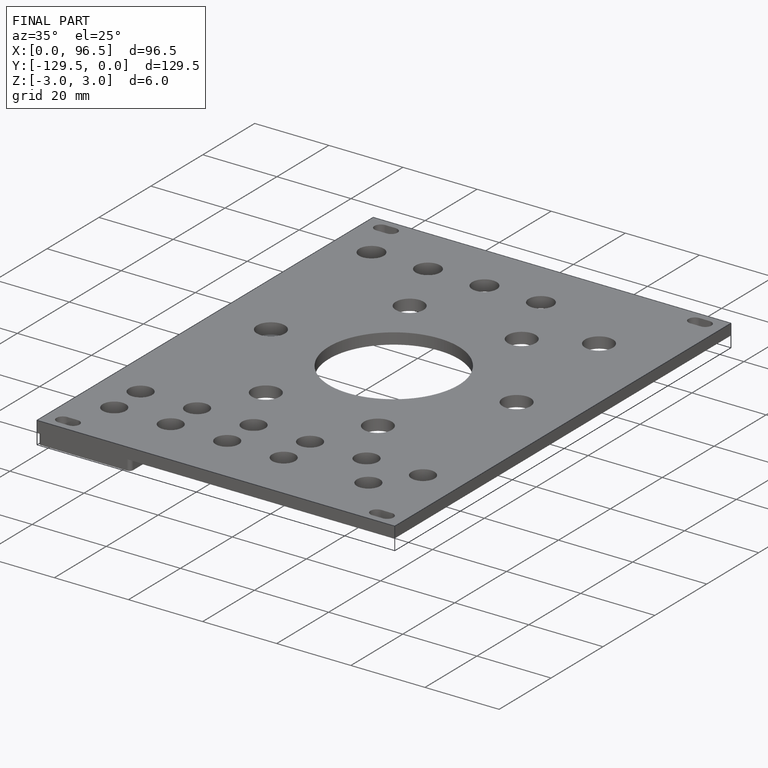
[diagram: finished part — iso view with bounding-box wireframe]
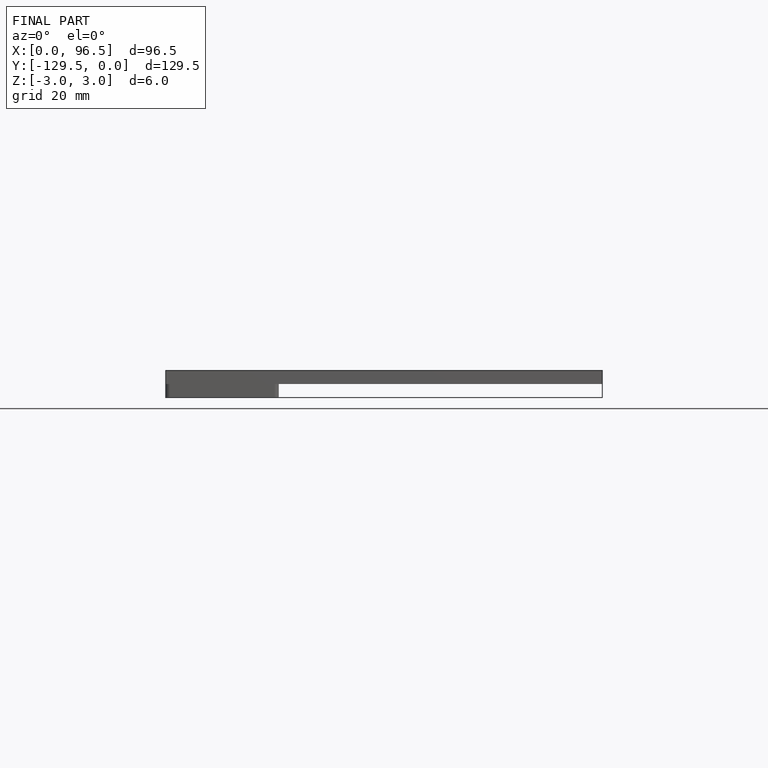
[diagram: finished part — front view with bounding-box wireframe]
